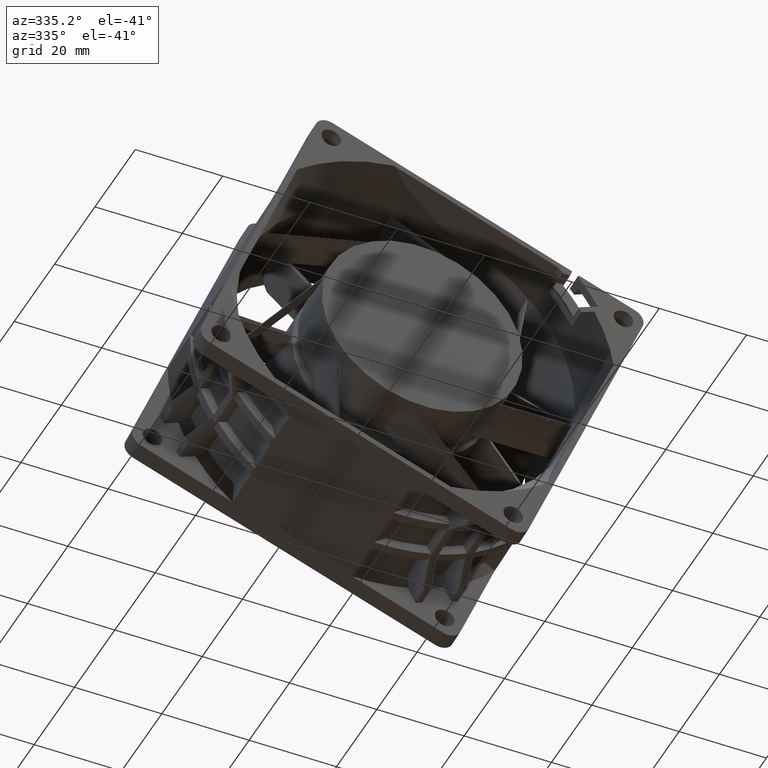
[diagram: clean part render]
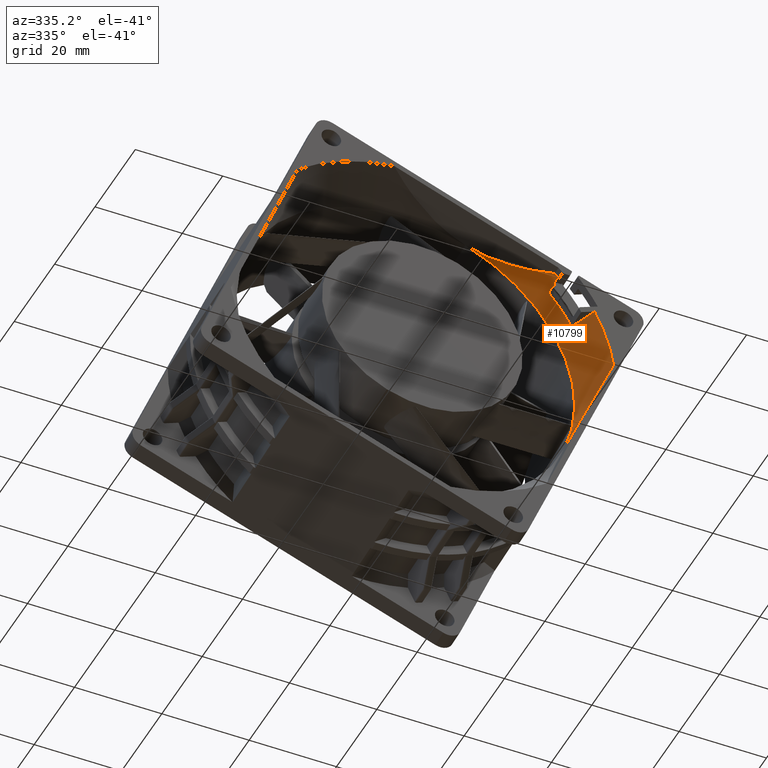
[diagram: same view with one face highlighted and labeled with its STEP entity id]
A machine part, auxiliary view. The second image highlights one B-rep face of the part: STEP entity #10799.
In plain terms, the highlighted conical surface has half-angle 34.33 deg.
Its self-contained STEP definition (entity closure, byte-faithful):
#818=CARTESIAN_POINT('',(0.E0,0.E0,-2.085E1));
#819=DIRECTION('',(0.E0,0.E0,-1.E0));
#820=DIRECTION('',(-4.866641256239E-1,-8.735891647856E-1,0.E0));
#821=AXIS2_PLACEMENT_3D('',#818,#819,#820);
#997=CARTESIAN_POINT('',(-3.752868479697E1,-1.966263699252E1,
-1.802065477541E1));
#1006=CARTESIAN_POINT('',(0.E0,0.E0,-1.265E1));
#1007=DIRECTION('',(0.E0,0.E0,-1.E0));
#1008=DIRECTION('',(0.E0,-1.E0,0.E0));
#1009=AXIS2_PLACEMENT_3D('',#1006,#1007,#1008);
#1011=CARTESIAN_POINT('',(-3.87E1,5.261568958304E-14,-1.265E1));
#1012=CARTESIAN_POINT('',(-3.87E1,-1.017082020997E0,-1.265E1));
#1013=CARTESIAN_POINT('',(-3.870000000412E1,-3.096371561644E0,
-1.276963098510E1));
#1014=CARTESIAN_POINT('',(-3.869999998559E1,-6.327593880194E0,
-1.333116723514E1));
#1015=CARTESIAN_POINT('',(-3.870000005353E1,-9.740721423689E0,
-1.436569784869E1));
#1016=CARTESIAN_POINT('',(-3.869999980030E1,-1.231236258586E1,
-1.541015604311E1));
#1017=CARTESIAN_POINT('',(-3.870000074529E1,-1.535567363531E1,
-1.689493763898E1));
#1018=CARTESIAN_POINT('',(-3.869999839414E1,-1.753725538043E1,
-1.817888809357E1));
#1019=CARTESIAN_POINT('',(-3.869999839414E1,-1.867447915728E1,
-1.890258097796E1));
#1021=CARTESIAN_POINT('',(-3.869999839414E1,-1.867447915728E1,
-1.890258097796E1));
#1022=CARTESIAN_POINT('',(-3.869998993859E1,-1.868977630153E1,
-1.891230444094E1));
#1023=CARTESIAN_POINT('',(-3.869767645021E1,-1.872016680529E1,
-1.892861370987E1));
#1024=CARTESIAN_POINT('',(-3.868706520427E1,-1.876532020686E1,
-1.894345223807E1));
#1025=CARTESIAN_POINT('',(-3.867609372475E1,-1.879255123725E1,
-1.894642857143E1));
#1026=CARTESIAN_POINT('',(-3.866978922716E1,-1.880551517846E1,
-1.894642857143E1));
#1028=CARTESIAN_POINT('',(0.E0,0.E0,-1.894642857143E1));
#1029=DIRECTION('',(0.E0,0.E0,1.E0));
#1030=DIRECTION('',(-8.992974238874E-1,-4.373375622897E-1,0.E0));
#1031=AXIS2_PLACEMENT_3D('',#1028,#1029,#1030);
#1033=CARTESIAN_POINT('',(-3.807833814267E1,-1.997598999671E1,
-1.894642870075E1));
#1034=CARTESIAN_POINT('',(-3.805380254871E1,-1.990374202027E1,
-1.886546749147E1));
#1035=CARTESIAN_POINT('',(-3.802928135478E1,-1.983144309446E1,
-1.878454644671E1));
#1036=CARTESIAN_POINT('',(-3.800469968330E1,-1.975906229061E1,
-1.870371994114E1));
#1038=CARTESIAN_POINT('',(-3.800469968330E1,-1.975906229061E1,
-1.870371994114E1));
#1039=CARTESIAN_POINT('',(-3.795182125137E1,-1.974827686927E1,
-1.862783395124E1));
#1040=CARTESIAN_POINT('',(-3.784615778297E1,-1.972681060867E1,
-1.847597645599E1));
#1041=CARTESIAN_POINT('',(-3.768722024976E1,-1.969487908189E1,
-1.824844395371E1));
#1042=CARTESIAN_POINT('',(-3.758157098875E1,-1.967342393067E1,
-1.809655221888E1));
#1043=CARTESIAN_POINT('',(-3.752868479697E1,-1.966263699252E1,
-1.802065477541E1));
#1045=CARTESIAN_POINT('',(-3.752868479697E1,-1.966263699252E1,
-1.802065477541E1));
#1046=CARTESIAN_POINT('',(-3.752497588140E1,-1.966188907051E1,
-1.801533588907E1));
#1047=CARTESIAN_POINT('',(-3.751759150275E1,-1.966066971447E1,
-1.800477819458E1));
#1048=CARTESIAN_POINT('',(-3.750630810523E1,-1.965951203651E1,
-1.798941909529E1));
#1049=CARTESIAN_POINT('',(-3.749875181536E1,-1.965923536780E1,
-1.797941760143E1));
#1050=CARTESIAN_POINT('',(-3.749495646995E1,-1.965921674502E1,
-1.797448298218E1));
#1052=CARTESIAN_POINT('',(-3.713740993749E1,-1.996089669130E1,
-1.771918968732E1));
#1053=CARTESIAN_POINT('',(-3.713475450199E1,-1.996036343728E1,
-1.771539523325E1));
#1054=CARTESIAN_POINT('',(-3.712619753195E1,-1.995864522076E1,
-1.770316751298E1));
#1055=CARTESIAN_POINT('',(-3.710591352507E1,-1.995456895342E1,
-1.767418293013E1));
#1056=CARTESIAN_POINT('',(-3.707855569108E1,-1.994907100775E1,
-1.763509036249E1));
#1057=CARTESIAN_POINT('',(-3.704864826073E1,-1.994306013078E1,
-1.759235980687E1));
#1058=CARTESIAN_POINT('',(-3.702803297048E1,-1.993891689793E1,
-1.756289982021E1));
#1059=CARTESIAN_POINT('',(-3.701900577275E1,-1.993710257768E1,
-1.755000228429E1));
#1061=CARTESIAN_POINT('',(-3.701900577275E1,-1.993710257768E1,
-1.755000228429E1));
#1062=CARTESIAN_POINT('',(-3.692372884880E1,-1.991795646340E1,
-1.741387716075E1));
#1063=CARTESIAN_POINT('',(-3.673311773362E1,-1.987965263509E1,
-1.714164609685E1));
#1064=CARTESIAN_POINT('',(-3.644706418373E1,-1.982216956202E1,
-1.673333685669E1));
#1065=CARTESIAN_POINT('',(-3.625627107544E1,-1.978382924520E1,
-1.646115363170E1));
#1066=CARTESIAN_POINT('',(-3.616084395979E1,-1.976465294955E1,
-1.632507363182E1));
#1068=CARTESIAN_POINT('',(-3.616084395979E1,-1.976465294955E1,
-1.632507363182E1));
#1069=CARTESIAN_POINT('',(-3.614315904355E1,-1.976109912544E1,
-1.629985476834E1));
#1070=CARTESIAN_POINT('',(-3.610816250417E1,-1.975738455846E1,
-1.625228262456E1));
#1071=CARTESIAN_POINT('',(-3.605808965397E1,-1.976061040731E1,
-1.619023928821E1));
#1072=CARTESIAN_POINT('',(-3.601070061638E1,-1.977157548910E1,
-1.613711995640E1));
#1073=CARTESIAN_POINT('',(-3.596653147133E1,-1.978958729025E1,
-1.609314288461E1));
#1074=CARTESIAN_POINT('',(-3.592651649381E1,-1.981380290804E1,
-1.605892862312E1));
#1075=CARTESIAN_POINT('',(-3.589135437961E1,-1.984330445765E1,
-1.603473720320E1));
#1076=CARTESIAN_POINT('',(-3.586175336907E1,-1.987698512689E1,
-1.602070104593E1));
#1077=CARTESIAN_POINT('',(-3.584626088970E1,-1.990089882458E1,
-1.601785714286E1));
#1078=CARTESIAN_POINT('',(-3.583949959300E1,-1.991306779287E1,
-1.601785714286E1));
#1080=CARTESIAN_POINT('',(0.E0,0.E0,-1.601785714286E1));
#1081=DIRECTION('',(0.E0,0.E0,1.E0));
#1082=DIRECTION('',(-8.741341364150E-1,-4.856845803133E-1,0.E0));
#1083=AXIS2_PLACEMENT_3D('',#1080,#1081,#1082);
#1085=CARTESIAN_POINT('',(-3.050524631497E1,-2.739397647775E1,
-1.601785714286E1));
#1086=CARTESIAN_POINT('',(-3.076488842434E1,-2.765361858712E1,
-1.655475272631E1));
#1087=CARTESIAN_POINT('',(-3.128415588127E1,-2.817288604404E1,
-1.762855108410E1));
#1088=CARTESIAN_POINT('',(-3.206301036497E1,-2.895174052775E1,
-1.923926673149E1));
#1089=CARTESIAN_POINT('',(-3.258221740775E1,-2.947094757053E1,
-2.031308743444E1));
#1090=CARTESIAN_POINT('',(-3.284181397582E1,-2.973054413860E1,-2.085E1));
#1150=CARTESIAN_POINT('',(-3.717275724266E1,-1.989499059666E1,
-1.771918849143E1));
#1151=CARTESIAN_POINT('',(-3.718888483603E1,-1.986470889680E1,
-1.771908614107E1));
#1152=CARTESIAN_POINT('',(-3.722716478604E1,-1.980820662253E1,
-1.772958549183E1));
#1153=CARTESIAN_POINT('',(-3.730407543513E1,-1.973204647520E1,
-1.777680862491E1));
#1154=CARTESIAN_POINT('',(-3.739654708758E1,-1.967470875187E1,
-1.785741996382E1));
#1155=CARTESIAN_POINT('',(-3.746122482472E1,-1.966095292732E1,
-1.793191895261E1));
#1156=CARTESIAN_POINT('',(-3.749495646995E1,-1.965921674502E1,
-1.797448298218E1));
#6604=CARTESIAN_POINT('',(0.E0,0.E0,-1.771918849385E1));
#6605=DIRECTION('',(0.E0,0.E0,-1.E0));
#6606=DIRECTION('',(-8.808289563442E-1,-4.734346308262E-1,0.E0));
#6607=AXIS2_PLACEMENT_3D('',#6604,#6605,#6606);
#6609=CARTESIAN_POINT('',(3.154853367381E-14,-3.87E1,-1.265E1));
#6610=CARTESIAN_POINT('',(-1.364840129841E0,-3.87E1,-1.265E1));
#6611=CARTESIAN_POINT('',(-4.055997978083E0,-3.87E1,-1.285250526531E1));
#6612=CARTESIAN_POINT('',(-8.225726501153E0,-3.87E1,-1.382383042309E1));
#6613=CARTESIAN_POINT('',(-1.178291675606E1,-3.87E1,-1.516240532082E1));
#6614=CARTESIAN_POINT('',(-1.485086217408E1,-3.87E1,-1.662882740315E1));
#6615=CARTESIAN_POINT('',(-1.814440493457E1,-3.87E1,-1.851574458234E1));
#6616=CARTESIAN_POINT('',(-2.040550756689E1,-3.87E1,-2.002784629219E1));
#6617=CARTESIAN_POINT('',(-2.155922076514E1,-3.87E1,-2.085E1));
#8255=CARTESIAN_POINT('',(-3.87E1,5.629814037629E-14,-1.265E1));
#8256=VERTEX_POINT('',#8255);
#8273=CARTESIAN_POINT('',(0.E0,-3.87E1,-1.265E1));
#8274=VERTEX_POINT('',#8273);
#8480=CARTESIAN_POINT('',(-2.155922076514E1,-3.87E1,-2.085E1));
#8481=VERTEX_POINT('',#8480);
#8482=CARTESIAN_POINT('',(-3.284181397582E1,-2.973054413860E1,-2.085E1));
#8483=VERTEX_POINT('',#8482);
#8545=VERTEX_POINT('',#997);
#8546=VERTEX_POINT('',#1038);
#8547=VERTEX_POINT('',#1050);
#8549=VERTEX_POINT('',#1019);
#8550=VERTEX_POINT('',#1026);
#8551=CARTESIAN_POINT('',(-3.807833469853E1,-1.997599626018E1,
-1.894642857143E1));
#8552=VERTEX_POINT('',#8551);
#8553=VERTEX_POINT('',#1150);
#8554=CARTESIAN_POINT('',(-3.713740900797E1,-1.996089637709E1,
-1.771918849385E1));
#8555=VERTEX_POINT('',#8554);
#8556=VERTEX_POINT('',#1059);
#8557=VERTEX_POINT('',#1066);
#8558=VERTEX_POINT('',#1078);
#8559=CARTESIAN_POINT('',(-3.050524631497E1,-2.739397647775E1,
-1.601785714286E1));
#8560=VERTEX_POINT('',#8559);
#10764=CARTESIAN_POINT('',(0.E0,0.E0,-1.675E1));
#10765=DIRECTION('',(0.E0,0.E0,-1.E0));
#10766=DIRECTION('',(1.E0,0.E0,0.E0));
#10767=AXIS2_PLACEMENT_3D('',#10764,#10765,#10766);
#10768=CONICAL_SURFACE('',#10767,4.15E1,3.433021719550E1);
#10769=ORIENTED_EDGE('',*,*,#10000,.T.);
#10771=ORIENTED_EDGE('',*,*,#10770,.T.);
#10773=ORIENTED_EDGE('',*,*,#10772,.T.);
#10775=ORIENTED_EDGE('',*,*,#10774,.T.);
#10777=ORIENTED_EDGE('',*,*,#10776,.T.);
#10778=ORIENTED_EDGE('',*,*,#10725,.T.);
#10779=ORIENTED_EDGE('',*,*,#10754,.T.);
#10781=ORIENTED_EDGE('',*,*,#10780,.F.);
#10783=ORIENTED_EDGE('',*,*,#10782,.F.);
#10785=ORIENTED_EDGE('',*,*,#10784,.T.);
#10787=ORIENTED_EDGE('',*,*,#10786,.T.);
#10789=ORIENTED_EDGE('',*,*,#10788,.T.);
#10791=ORIENTED_EDGE('',*,*,#10790,.T.);
#10793=ORIENTED_EDGE('',*,*,#10792,.T.);
#10794=ORIENTED_EDGE('',*,*,#10601,.F.);
#10796=ORIENTED_EDGE('',*,*,#10795,.F.);
#10797=EDGE_LOOP('',(#10769,#10771,#10773,#10775,#10777,#10778,#10779,#10781,
#10783,#10785,#10787,#10789,#10791,#10793,#10794,#10796));
#10798=FACE_OUTER_BOUND('',#10797,.F.);
#822=CIRCLE('',#821,4.43E1);
#1010=CIRCLE('',#1009,3.87E1);
#1020=B_SPLINE_CURVE_WITH_KNOTS('',3,(#1011,#1012,#1013,#1014,#1015,#1016,#1017,
#1018,#1019),.UNSPECIFIED.,.F.,.F.,(4,1,1,1,1,1,4),(0.E0,1.666666666667E-1,
3.333333333333E-1,5.E-1,6.666666666667E-1,8.333333333333E-1,1.E0),
.UNSPECIFIED.);
#1027=B_SPLINE_CURVE_WITH_KNOTS('',3,(#1021,#1022,#1023,#1024,#1025,#1026),
.UNSPECIFIED.,.F.,.F.,(4,1,1,4),(0.E0,3.333333333333E-1,6.666666666667E-1,1.E0),
.UNSPECIFIED.);
#1032=CIRCLE('',#1031,4.3E1);
#1037=B_SPLINE_CURVE_WITH_KNOTS('',3,(#1033,#1034,#1035,#1036),.UNSPECIFIED.,
.F.,.F.,(4,4),(0.E0,1.E0),.UNSPECIFIED.);
#1044=B_SPLINE_CURVE_WITH_KNOTS('',3,(#1038,#1039,#1040,#1041,#1042,#1043),
.UNSPECIFIED.,.F.,.F.,(4,1,1,4),(0.E0,3.333333333333E-1,6.666666666667E-1,1.E0),
.UNSPECIFIED.);
#1051=B_SPLINE_CURVE_WITH_KNOTS('',3,(#1045,#1046,#1047,#1048,#1049,#1050),
.UNSPECIFIED.,.F.,.F.,(4,1,1,4),(0.E0,3.333333333333E-1,6.666666666667E-1,1.E0),
.UNSPECIFIED.);
#1060=B_SPLINE_CURVE_WITH_KNOTS('',3,(#1052,#1053,#1054,#1055,#1056,#1057,#1058,
#1059),.UNSPECIFIED.,.F.,.F.,(4,1,1,1,1,4),(0.E0,1.748051250934E-1,
3.657992572522E-1,5.776465324820E-1,8.148167145333E-1,1.E0),.UNSPECIFIED.);
#1067=B_SPLINE_CURVE_WITH_KNOTS('',3,(#1061,#1062,#1063,#1064,#1065,#1066),
.UNSPECIFIED.,.F.,.F.,(4,1,1,4),(0.E0,3.333333333333E-1,6.666666666667E-1,1.E0),
.UNSPECIFIED.);
#1079=B_SPLINE_CURVE_WITH_KNOTS('',3,(#1068,#1069,#1070,#1071,#1072,#1073,#1074,
#1075,#1076,#1077,#1078),.UNSPECIFIED.,.F.,.F.,(4,1,1,1,1,1,1,1,4),(0.E0,
1.25E-1,2.5E-1,3.75E-1,5.E-1,6.25E-1,7.5E-1,8.75E-1,1.E0),.UNSPECIFIED.);
#1084=CIRCLE('',#1083,4.1E1);
#1091=B_SPLINE_CURVE_WITH_KNOTS('',3,(#1085,#1086,#1087,#1088,#1089,#1090),
.UNSPECIFIED.,.F.,.F.,(4,1,1,4),(0.E0,3.333333333333E-1,6.666666666667E-1,1.E0),
.UNSPECIFIED.);
#1157=B_SPLINE_CURVE_WITH_KNOTS('',3,(#1150,#1151,#1152,#1153,#1154,#1155,
#1156),.UNSPECIFIED.,.F.,.F.,(4,1,1,1,4),(0.E0,2.5E-1,5.E-1,7.5E-1,1.E0),
.UNSPECIFIED.);
#6608=CIRCLE('',#6607,4.216188482507E1);
#6618=B_SPLINE_CURVE_WITH_KNOTS('',3,(#6609,#6610,#6611,#6612,#6613,#6614,#6615,
#6616,#6617),.UNSPECIFIED.,.F.,.F.,(4,1,1,1,1,1,4),(0.E0,1.666666666667E-1,
3.333333333333E-1,5.E-1,6.666666666667E-1,8.333333333333E-1,1.E0),
.UNSPECIFIED.);
#10000=EDGE_CURVE('',#8274,#8256,#1010,.T.);
#10601=EDGE_CURVE('',#8481,#8483,#822,.T.);
#10725=EDGE_CURVE('',#8546,#8545,#1044,.T.);
#10754=EDGE_CURVE('',#8545,#8547,#1051,.T.);
#10770=EDGE_CURVE('',#8256,#8549,#1020,.T.);
#10772=EDGE_CURVE('',#8549,#8550,#1027,.T.);
#10774=EDGE_CURVE('',#8550,#8552,#1032,.T.);
#10776=EDGE_CURVE('',#8552,#8546,#1037,.T.);
#10780=EDGE_CURVE('',#8553,#8547,#1157,.T.);
#10782=EDGE_CURVE('',#8555,#8553,#6608,.T.);
#10784=EDGE_CURVE('',#8555,#8556,#1060,.T.);
#10786=EDGE_CURVE('',#8556,#8557,#1067,.T.);
#10788=EDGE_CURVE('',#8557,#8558,#1079,.T.);
#10790=EDGE_CURVE('',#8558,#8560,#1084,.T.);
#10792=EDGE_CURVE('',#8560,#8483,#1091,.T.);
#10795=EDGE_CURVE('',#8274,#8481,#6618,.T.);
#10799=ADVANCED_FACE('',(#10798),#10768,.F.);